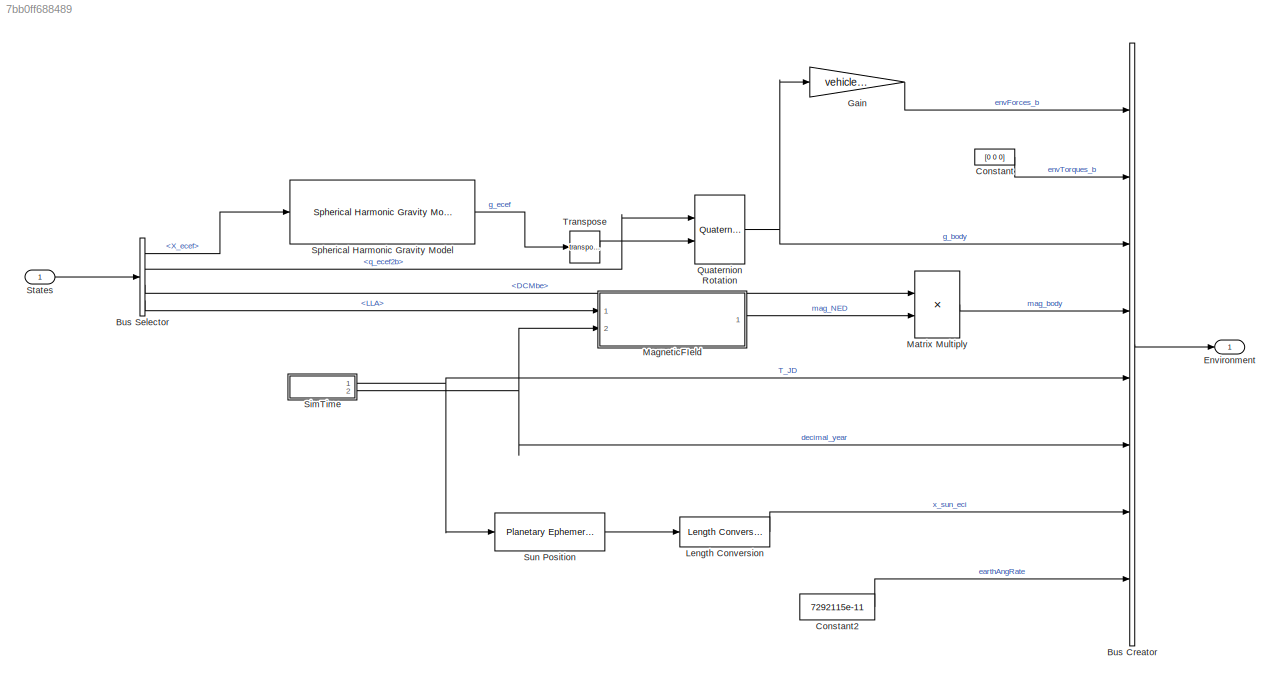
MODEL slx_7bb0ff688489
KIND model
CONFIG AbsTol = auto
CONFIG EnableMultiTasking = off
CONFIG FixedStep = auto
CONFIG MaxStep = auto
CONFIG MinStep = auto
CONFIG RelTol = 1e-3
CONFIG SampleTimeConstraint = Unconstrained
CONFIG SolverName = FixedStepAuto
CONFIG StartTime = 0.0
CONFIG StopTime = 10.0
BLOCK [BusCreator] Bus Creator
  DisplayOption = bar
  InheritFromInputs = on
  Inputs = 8
  NameLocation = left
  Ports = [8, 1]
BLOCK [BusSelector] Bus Selector
  OutputSignals = X_ecef,q_ecef2b,DCMbe,LLA
  Ports = [1, 4]
BLOCK [Constant] Constant
  Value = [0 0 0]
BLOCK [Constant] Constant2
  Value = 7292115e-11
BLOCK [Outport] Environment
  OutDataTypeStr = Bus: Environment
BLOCK [Gain] Gain
  Gain = vehicle.mass
BLOCK [Reference] Length Conversion  REF=aerolibconvert2/Length Conversion
  Ports = [1, 1]
  SourceBlock = aerolibconvert2/Length Conversion
  SourceProductBaseCode = AE
  SourceType = Length Conversion
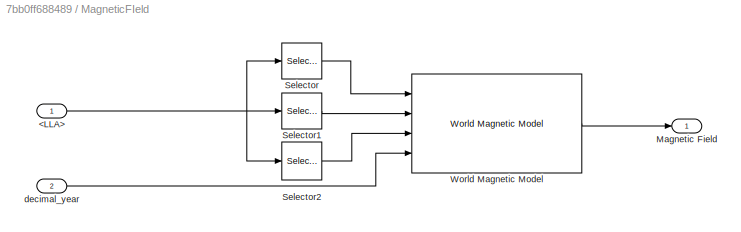
BLOCK [SubSystem] MagneticFIeld
  Ports = [2, 1]
  RequestExecContextInheritance = off
BLOCK [Inport] MagneticFIeld/<LLA>
BLOCK [Outport] MagneticFIeld/Magnetic Field
BLOCK [Selector] MagneticFIeld/Selector
  IndexOptions = Index vector (dialog)
  Indices = [3]
  InputPortWidth = 3
  OutputSizes = 1
  Ports = [1, 1]
BLOCK [Selector] MagneticFIeld/Selector1
  IndexOptions = Index vector (dialog)
  Indices = [1]
  InputPortWidth = 3
  OutputSizes = 1
  Ports = [1, 1]
BLOCK [Selector] MagneticFIeld/Selector2
  IndexOptions = Index vector (dialog)
  Indices = [2]
  InputPortWidth = 3
  OutputSizes = 1
  Ports = [1, 1]
BLOCK [Reference] MagneticFIeld/World Magnetic Model  REF=aerolibgravity2/World Magnetic Model
  AttributesFormatString = %<model>
  Ports = [4, 1]
  SourceBlock = aerolibgravity2/World Magnetic Model
  SourceProductBaseCode = AE
  SourceType = WorldMagneticModel
BLOCK [Inport] MagneticFIeld/decimal_year
  Port = 2
BLOCK [Product] Matrix Multiply
  Multiplication = Matrix(*)
  Ports = [2, 1]
BLOCK [Reference] Quaternion Rotation  REF=aerolibutil/Quaternion
Rotation
  Ports = [2, 1]
  SourceBlock = aerolibutil/Quaternion\nRotation
  SourceProductBaseCode = AE
  SourceType = Quaternion Rotation
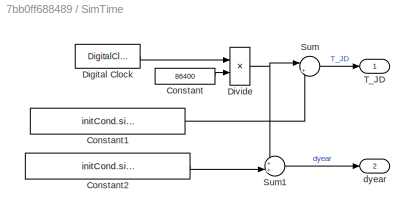
BLOCK [SubSystem] SimTime
  Ports = [0, 2]
  RequestExecContextInheritance = off
BLOCK [Constant] SimTime/Constant
  Value = 86400
BLOCK [Constant] SimTime/Constant1
  Value = initCond.simStartDate.JD
BLOCK [Constant] SimTime/Constant2
  Value = initCond.simStartDate.dateVector(1)
BLOCK [DigitalClock] SimTime/Digital Clock
BLOCK [Product] SimTime/Divide
  Inputs = */
  Ports = [2, 1]
BLOCK [Sum] SimTime/Sum
  Inputs = |++
  Ports = [2, 1]
BLOCK [Sum] SimTime/Sum1
  Inputs = ++|
  Ports = [2, 1]
BLOCK [Outport] SimTime/T_JD
BLOCK [Outport] SimTime/dyear
  Port = 2
BLOCK [Reference] Spherical Harmonic Gravity Model  REF=aerolibgravity2/Spherical Harmonic Gravity Model
  Ports = [1, 1]
  SourceBlock = aerolibgravity2/Spherical Harmonic Gravity Model
  SourceProductBaseCode = AE
  SourceType = Spherical Harmonic Gravity Model
BLOCK [Inport] States
  OutDataTypeStr = Bus: States
BLOCK [Reference] Sun Position  REF=aerolibcelestial/Planetary Ephemeris
  Ports = [1, 1]
  SourceBlock = aerolibcelestial/Planetary Ephemeris
  SourceProductBaseCode = AE
  SourceType = PlanetaryEphemeris
BLOCK [Math] Transpose
  Operator = transpose
  Ports = [1, 1]
LINE Bus Creator:1 -> Environment:1
LINE Bus Selector:1 -> Spherical Harmonic Gravity Model:1
LINE Bus Selector:2 -> Quaternion Rotation:1
LINE Bus Selector:3 -> Matrix Multiply:1
LINE Bus Selector:4 -> MagneticFIeld:1
LINE Constant2:1 -> Bus Creator:8
LINE Constant:1 -> Bus Creator:2
LINE Gain:1 -> Bus Creator:1
LINE Length Conversion:1 -> Bus Creator:7
NET MagneticFIeld/<LLA>:1 -> MagneticFIeld/Selector1:1, MagneticFIeld/Selector2:1, MagneticFIeld/Selector:1
LINE MagneticFIeld/Selector1:1 -> MagneticFIeld/World Magnetic Model:2
LINE MagneticFIeld/Selector2:1 -> MagneticFIeld/World Magnetic Model:3
LINE MagneticFIeld/Selector:1 -> MagneticFIeld/World Magnetic Model:1
LINE MagneticFIeld/World Magnetic Model:1 -> MagneticFIeld/Magnetic Field:1
LINE MagneticFIeld/decimal_year:1 -> MagneticFIeld/World Magnetic Model:4
LINE MagneticFIeld:1 -> Matrix Multiply:2
LINE Matrix Multiply:1 -> Bus Creator:4
NET Quaternion Rotation:1 -> Bus Creator:3, Gain:1
LINE SimTime/Constant1:1 -> SimTime/Sum:2
LINE SimTime/Constant2:1 -> SimTime/Sum1:2
LINE SimTime/Constant:1 -> SimTime/Divide:2
LINE SimTime/Digital Clock:1 -> SimTime/Divide:1
NET SimTime/Divide:1 -> SimTime/Sum1:1, SimTime/Sum:1
LINE SimTime/Sum1:1 -> SimTime/dyear:1
LINE SimTime/Sum:1 -> SimTime/T_JD:1
NET SimTime:1 -> Bus Creator:5, Sun Position:1
NET SimTime:2 -> Bus Creator:6, MagneticFIeld:2
LINE Spherical Harmonic Gravity Model:1 -> Transpose:1
LINE States:1 -> Bus Selector:1
LINE Sun Position:1 -> Length Conversion:1
LINE Transpose:1 -> Quaternion Rotation:2
note: NET lines group one-source signal fan-out (src -> all destinations, sorted); 1:1 wires keep LINE
